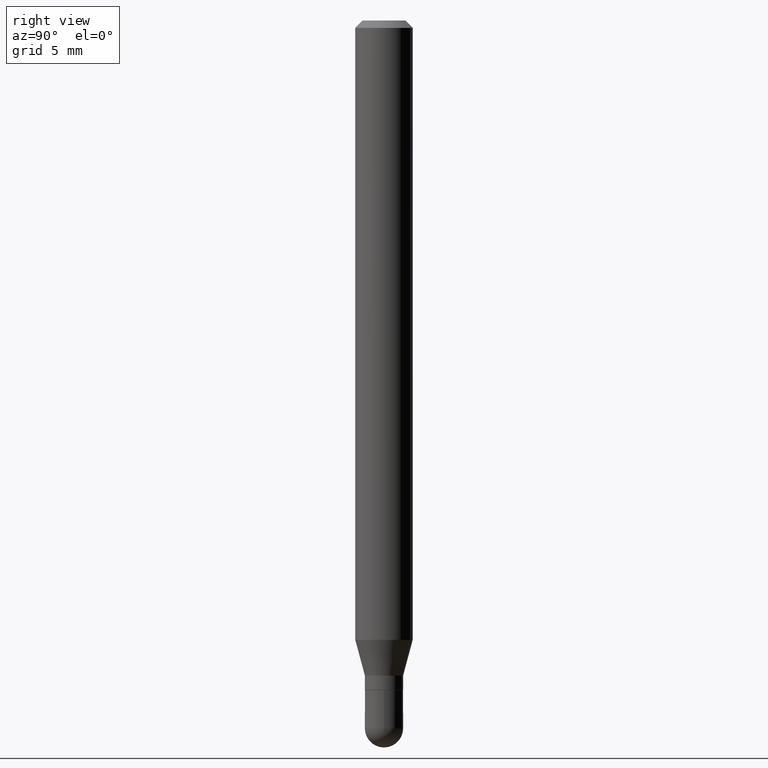
[diagram: clean part render]
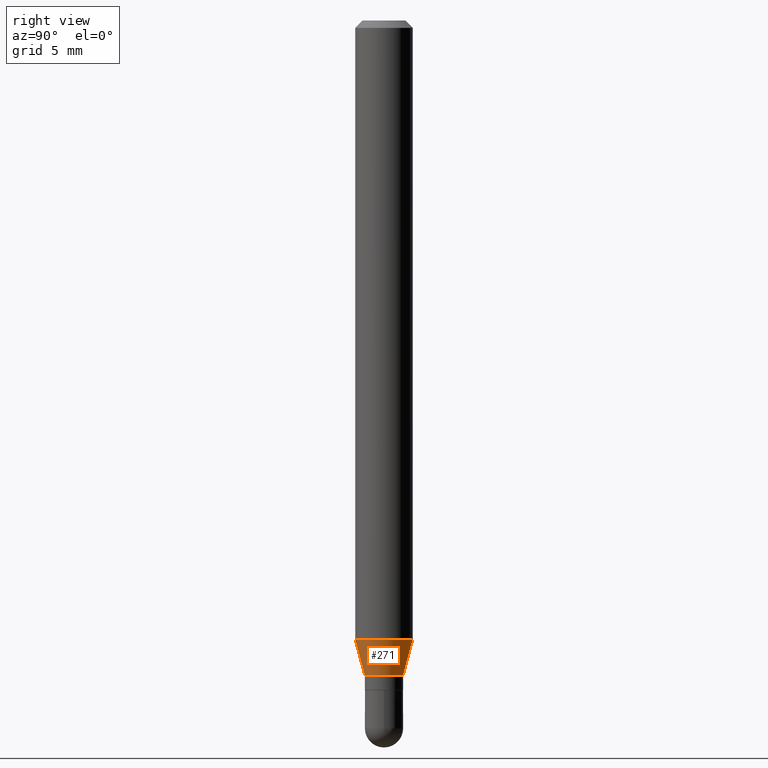
[diagram: same view with one face highlighted and labeled with its STEP entity id]
A machine part, right view. The second image highlights one B-rep face of the part: STEP entity #271.
In plain terms, the highlighted conical surface has half-angle 15 deg.
Its self-contained STEP definition (entity closure, byte-faithful):
#49 = CARTESIAN_POINT ( 'NONE',  ( 2.795985665216317880E-16, 0.03934999999999522213, -1.348100000000000298 ) ) ;
#55 = VERTEX_POINT ( 'NONE', #255 ) ;
#64 = CARTESIAN_POINT ( 'NONE',  ( -2.747795813669210945E-16, -0.03935000000000463127, -1.348099999999999854 ) ) ;
#86 = CIRCLE ( 'NONE', #216, 0.03934999999999992670 ) ;
#104 = CARTESIAN_POINT ( 'NONE',  ( -4.123439461173426262E-16, -0.05905000000000441146, -1.274578599090892883 ) ) ;
#108 = ORIENTED_EDGE ( 'NONE', *, *, #155, .T. ) ;
#121 = AXIS2_PLACEMENT_3D ( 'NONE', #191, #276, #473 ) ;
#131 = VECTOR ( 'NONE', #213, 39.37007874015748143 ) ;
#132 = VECTOR ( 'NONE', #222, 39.37007874015748143 ) ;
#139 = CARTESIAN_POINT ( 'NONE',  ( 4.195754854663704558E-16, 0.05904999999999558519, -1.274578599090893327 ) ) ;
#142 = CONICAL_SURFACE ( 'NONE', #121, 0.03934999999999992670, 0.2617993877991502960 ) ;
#155 = EDGE_CURVE ( 'NONE', #55, #413, #246, .T. ) ;
#177 = CARTESIAN_POINT ( 'NONE',  ( 3.296699466052710378E-29, -4.706919024203907361E-15, -1.348100000000000076 ) ) ;
#178 = EDGE_CURVE ( 'NONE', #405, #413, #275, .T. ) ;
#191 = CARTESIAN_POINT ( 'NONE',  ( 3.296699466052710378E-29, -4.706919024203907361E-15, -1.348100000000000076 ) ) ;
#198 = FACE_OUTER_BOUND ( 'NONE', #223, .T. ) ;
#213 = DIRECTION ( 'NONE',  ( 1.839019923739601104E-15, 0.2588190451025250693, 0.9659258262890670910 ) ) ;
#216 = AXIS2_PLACEMENT_3D ( 'NONE', #177, #297, #422 ) ;
#220 = ORIENTED_EDGE ( 'NONE', *, *, #378, .T. ) ;
#222 = DIRECTION ( 'NONE',  ( -1.807323732225330928E-15, -0.2588190451025182970, 0.9659258262890689783 ) ) ;
#223 = EDGE_LOOP ( 'NONE', ( #220, #108, #244, #325 ) ) ;
#226 = DIRECTION ( 'NONE',  ( -2.445441336735190408E-29, 3.491520676658932537E-15, 1.000000000000000000 ) ) ;
#238 = CARTESIAN_POINT ( 'NONE',  ( 3.116907193134900210E-29, -4.450217532752829933E-15, -1.274578599090893105 ) ) ;
#244 = ORIENTED_EDGE ( 'NONE', *, *, #178, .F. ) ;
#246 = LINE ( 'NONE', #49, #131 ) ;
#255 = CARTESIAN_POINT ( 'NONE',  ( 3.495870259940009986E-16, 0.03934999999999522213, -1.348100000000000298 ) ) ;
#256 = CARTESIAN_POINT ( 'NONE',  ( -2.747795813669210945E-16, -0.03935000000000463127, -1.348099999999999854 ) ) ;
#271 = ADVANCED_FACE ( 'NONE', ( #198 ), #142, .T. ) ;
#275 = CIRCLE ( 'NONE', #468, 0.05904999999999999832 ) ;
#276 = DIRECTION ( 'NONE',  ( -2.445441336735190408E-29, 3.491520676658932537E-15, 1.000000000000000000 ) ) ;
#297 = DIRECTION ( 'NONE',  ( -2.445441336735190408E-29, 3.491520676658932537E-15, 1.000000000000000000 ) ) ;
#325 = ORIENTED_EDGE ( 'NONE', *, *, #462, .F. ) ;
#378 = EDGE_CURVE ( 'NONE', #487, #55, #86, .T. ) ;
#393 = DIRECTION ( 'NONE',  ( -6.982962677686265922E-15, -1.000000000000000000, 4.626330217890369336E-15 ) ) ;
#405 = VERTEX_POINT ( 'NONE', #104 ) ;
#413 = VERTEX_POINT ( 'NONE', #139 ) ;
#422 = DIRECTION ( 'NONE',  ( -6.982962677686265133E-15, -1.000000000000000000, 6.942434545525459712E-15 ) ) ;
#458 = LINE ( 'NONE', #256, #132 ) ;
#462 = EDGE_CURVE ( 'NONE', #487, #405, #458, .T. ) ;
#468 = AXIS2_PLACEMENT_3D ( 'NONE', #238, #226, #393 ) ;
#473 = DIRECTION ( 'NONE',  ( -6.982962677686265133E-15, -1.000000000000000000, 6.942434545525459712E-15 ) ) ;
#487 = VERTEX_POINT ( 'NONE', #64 ) ;